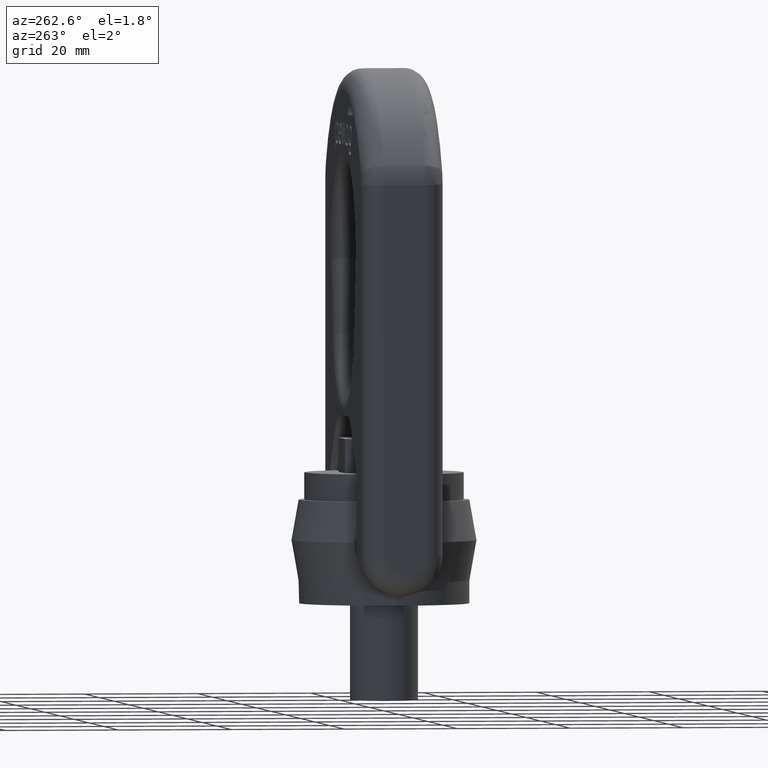
[diagram: clean part render]
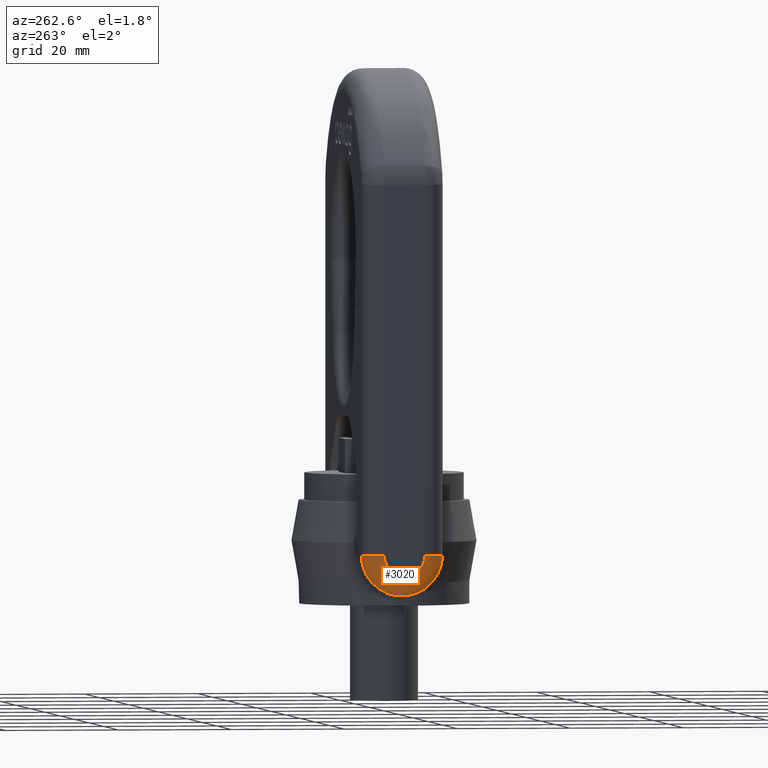
[diagram: same view with one face highlighted and labeled with its STEP entity id]
A machine part, auxiliary view. The second image highlights one B-rep face of the part: STEP entity #3020.
In plain terms, the highlighted face is a freeform B-spline surface patch.
Its self-contained STEP definition (entity closure, byte-faithful):
#207=(
BOUNDED_SURFACE()
B_SPLINE_SURFACE(3,3,((#9717,#9718,#9719,#9720),(#9721,#9722,#9723,#9724),
(#9725,#9726,#9727,#9728),(#9729,#9730,#9731,#9732)),.UNSPECIFIED.,.F.,
 .F.,.F.)
B_SPLINE_SURFACE_WITH_KNOTS((4,4),(4,4),(0.,1.),(0.,1.),.UNSPECIFIED.)
GEOMETRIC_REPRESENTATION_ITEM()
RATIONAL_B_SPLINE_SURFACE(((1.,0.333333333333333,0.333333333333333,1.),
(0.804737854124365,0.268245951374788,0.268245951374788,0.804737854124365),
(0.804737854124365,0.268245951374788,0.268245951374788,0.804737854124365),
(1.,0.333333333333333,0.333333333333333,1.)))
REPRESENTATION_ITEM('')
SURFACE()
);
#2645=FACE_OUTER_BOUND('',#3413,.T.);
#3020=ADVANCED_FACE('',(#2645),#207,.T.);
#3413=EDGE_LOOP('',(#4617,#4618,#4619,#4620));
#4617=ORIENTED_EDGE('',*,*,#5729,.F.);
#4618=ORIENTED_EDGE('',*,*,#5170,.F.);
#4619=ORIENTED_EDGE('',*,*,#5730,.F.);
#4620=ORIENTED_EDGE('',*,*,#5362,.F.);
#4737=VERTEX_POINT('',#7055);
#4739=VERTEX_POINT('',#7058);
#4921=VERTEX_POINT('',#7746);
#4922=VERTEX_POINT('',#7748);
#5170=EDGE_CURVE('',#4737,#4739,#5760,.T.);
#5362=EDGE_CURVE('',#4921,#4922,#5789,.T.);
#5729=EDGE_CURVE('',#4739,#4921,#5807,.T.);
#5730=EDGE_CURVE('',#4922,#4737,#5808,.T.);
#5760=CIRCLE('',#5864,7.19999999999997);
#5789=CIRCLE('',#5900,3.59999999999997);
#5807=CIRCLE('',#6030,3.6);
#5808=CIRCLE('',#6031,3.6);
#5864=AXIS2_PLACEMENT_3D('',#7057,#6180,#6181);
#5900=AXIS2_PLACEMENT_3D('',#7747,#6347,#6348);
#6030=AXIS2_PLACEMENT_3D('',#9715,#6868,#6869);
#6031=AXIS2_PLACEMENT_3D('',#9716,#6870,#6871);
#6180=DIRECTION('',(1.,0.,-1.4065325480893E-16));
#6181=DIRECTION('',(0.,0.,-1.));
#6347=DIRECTION('',(-1.,0.,1.4065325480893E-16));
#6348=DIRECTION('',(0.,0.,-1.));
#6868=DIRECTION('',(0.,0.,1.));
#6869=DIRECTION('',(1.,0.,0.));
#6870=DIRECTION('',(0.,0.,1.));
#6871=DIRECTION('',(1.,0.,0.));
#7055=CARTESIAN_POINT('',(-24.4,-7.2,9.20000000000003));
#7057=CARTESIAN_POINT('',(-24.4,2.87220644093874E-14,9.20000000000003));
#7058=CARTESIAN_POINT('',(-24.4,7.20000000000006,9.20000000000003));
#7746=CARTESIAN_POINT('',(-28.,3.6,9.20000000000003));
#7747=CARTESIAN_POINT('',(-28.,2.87220644093874E-14,9.20000000000003));
#7748=CARTESIAN_POINT('',(-28.,-3.6,9.20000000000003));
#9715=CARTESIAN_POINT('',(-24.4,3.6,9.20000000000003));
#9716=CARTESIAN_POINT('',(-24.4,-3.59999999999994,9.20000000000003));
#9717=CARTESIAN_POINT('',(-24.4,-7.19999999999994,9.20000000000003));
#9718=CARTESIAN_POINT('',(-24.4,-7.19999999999994,-5.1999999999999));
#9719=CARTESIAN_POINT('',(-24.4,7.19999999999999,-5.1999999999999));
#9720=CARTESIAN_POINT('',(-24.4,7.2,9.20000000000003));
#9721=CARTESIAN_POINT('',(-26.5088311754569,-7.19999999999994,9.20000000000003));
#9722=CARTESIAN_POINT('',(-26.5088311754569,-7.19999999999994,-5.1999999999999));
#9723=CARTESIAN_POINT('',(-26.5088311754569,7.2,-5.1999999999999));
#9724=CARTESIAN_POINT('',(-26.5088311754569,7.2,9.20000000000003));
#9725=CARTESIAN_POINT('',(-28.,-5.7088311754568,9.20000000000003));
#9726=CARTESIAN_POINT('',(-28.,-5.70883117545679,-2.21766235091362));
#9727=CARTESIAN_POINT('',(-28.,5.70883117545685,-2.21766235091362));
#9728=CARTESIAN_POINT('',(-28.,5.70883117545685,9.20000000000003));
#9729=CARTESIAN_POINT('',(-28.,-3.59999999999994,9.20000000000003));
#9730=CARTESIAN_POINT('',(-28.,-3.59999999999994,2.0000000000001));
#9731=CARTESIAN_POINT('',(-28.,3.6,2.0000000000001));
#9732=CARTESIAN_POINT('',(-28.,3.6,9.20000000000003));